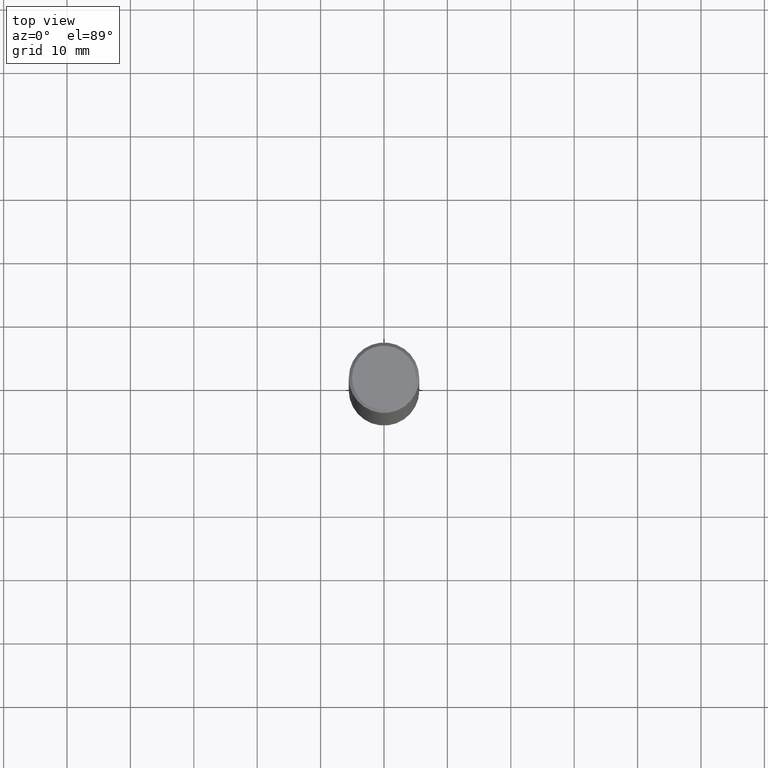
[diagram: clean part render]
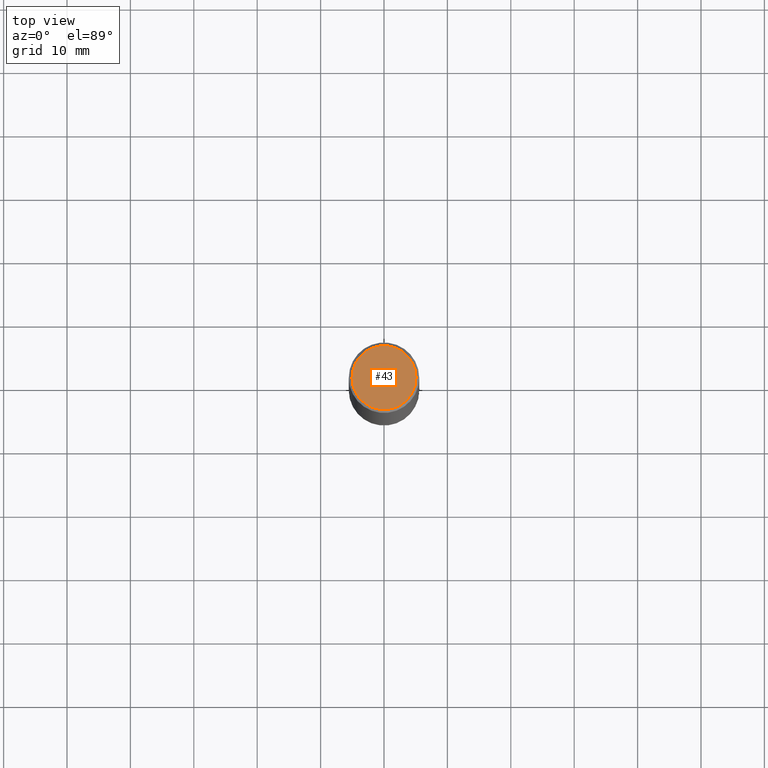
[diagram: same view with one face highlighted and labeled with its STEP entity id]
A machine part, top view. The second image highlights one B-rep face of the part: STEP entity #43.
In plain terms, the highlighted planar face has unit normal (0, -0, -1).
Its self-contained STEP definition (entity closure, byte-faithful):
#5 = CARTESIAN_POINT ( 'NONE',  ( 0.1987499999999996769, -1.467043770423236678E-15, 9.982525199991768280E-30 ) ) ;
#14 = EDGE_CURVE ( 'NONE', #328, #156, #302, .T. ) ;
#18 = CARTESIAN_POINT ( 'NONE',  ( 0.000000000000000000, 0.000000000000000000, 0.000000000000000000 ) ) ;
#33 = AXIS2_PLACEMENT_3D ( 'NONE', #52, #321, #44 ) ;
#43 = ADVANCED_FACE ( 'NONE', ( #352 ), #229, .F. ) ;
#44 = DIRECTION ( 'NONE',  ( -1.000000000000000000, 6.982962677686265922E-15, -4.876176775795935793E-29 ) ) ;
#52 = CARTESIAN_POINT ( 'NONE',  ( 1.387863832190143063E-15, 0.1987499999999996769, -6.939319160950740954E-16 ) ) ;
#81 = DIRECTION ( 'NONE',  ( 1.000000000000000000, -6.982962677686267499E-15, 4.876176775795935793E-29 ) ) ;
#130 = DIRECTION ( 'NONE',  ( -2.445468806185136597E-29, 3.491481338843145583E-15, 1.000000000000000000 ) ) ;
#146 = DIRECTION ( 'NONE',  ( -2.445468806185136597E-29, 3.491481338843145583E-15, 1.000000000000000000 ) ) ;
#156 = VERTEX_POINT ( 'NONE', #164 ) ;
#163 = ORIENTED_EDGE ( 'NONE', *, *, #297, .T. ) ;
#164 = CARTESIAN_POINT ( 'NONE',  ( -0.1987499999999996769, 1.422778645578574515E-15, -9.827974342635069682E-30 ) ) ;
#203 = DIRECTION ( 'NONE',  ( 1.000000000000000000, -6.982962677686267499E-15, 4.876176775795935793E-29 ) ) ;
#218 = EDGE_LOOP ( 'NONE', ( #163, #344 ) ) ;
#229 = PLANE ( 'NONE',  #33 ) ;
#257 = AXIS2_PLACEMENT_3D ( 'NONE', #18, #130, #81 ) ;
#283 = CIRCLE ( 'NONE', #312, 0.1987499999999996769 ) ;
#297 = EDGE_CURVE ( 'NONE', #156, #328, #283, .T. ) ;
#302 = CIRCLE ( 'NONE', #257, 0.1987499999999996769 ) ;
#312 = AXIS2_PLACEMENT_3D ( 'NONE', #361, #146, #203 ) ;
#321 = DIRECTION ( 'NONE',  ( 2.438088387897960049E-29, -3.491481338843145188E-15, -1.000000000000000000 ) ) ;
#328 = VERTEX_POINT ( 'NONE', #5 ) ;
#344 = ORIENTED_EDGE ( 'NONE', *, *, #14, .T. ) ;
#352 = FACE_OUTER_BOUND ( 'NONE', #218, .T. ) ;
#361 = CARTESIAN_POINT ( 'NONE',  ( 0.000000000000000000, 0.000000000000000000, 0.000000000000000000 ) ) ;